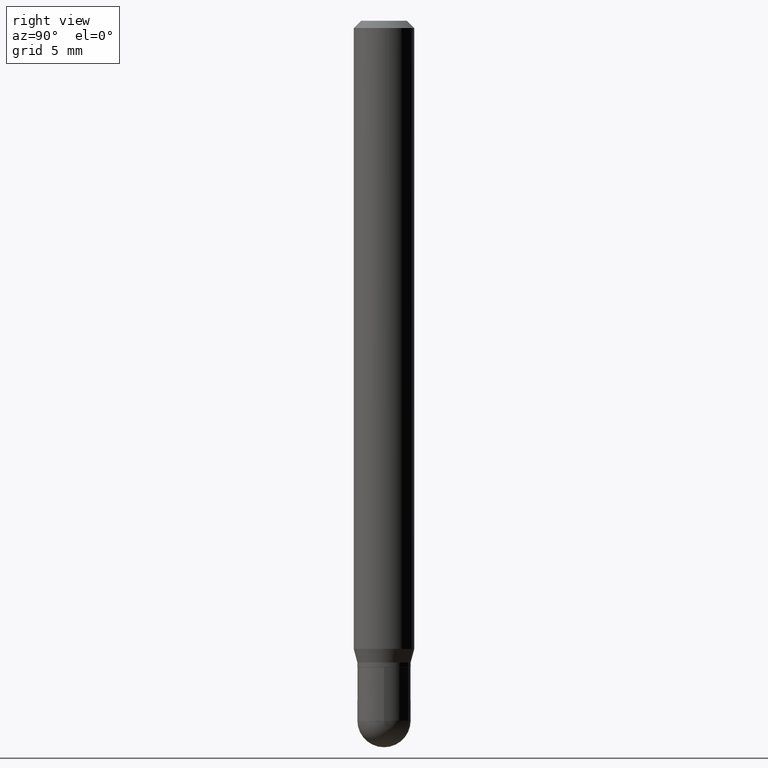
[diagram: clean part render]
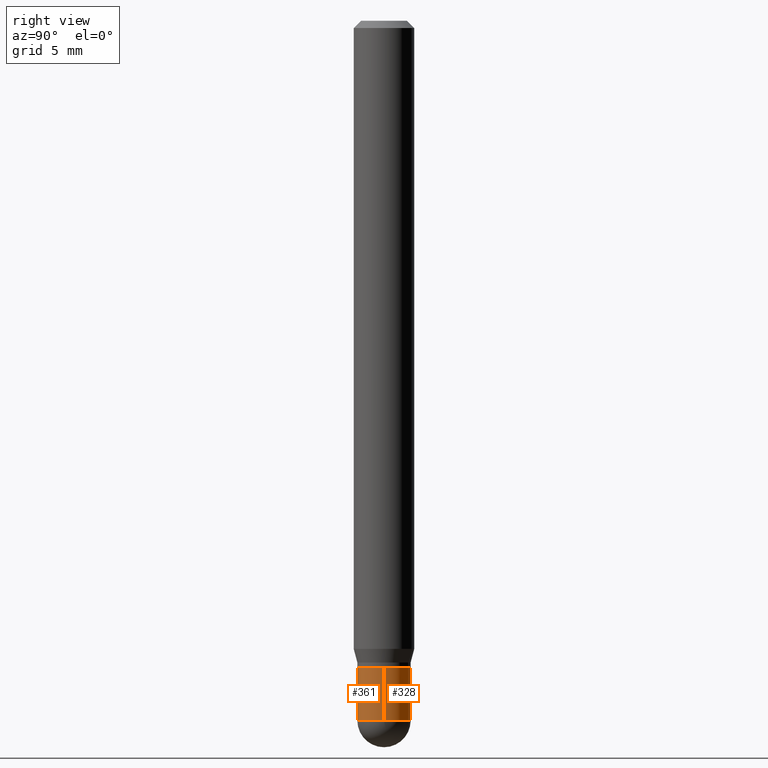
[diagram: same view with one multi-face feature highlighted, each face labeled with its STEP entity id]
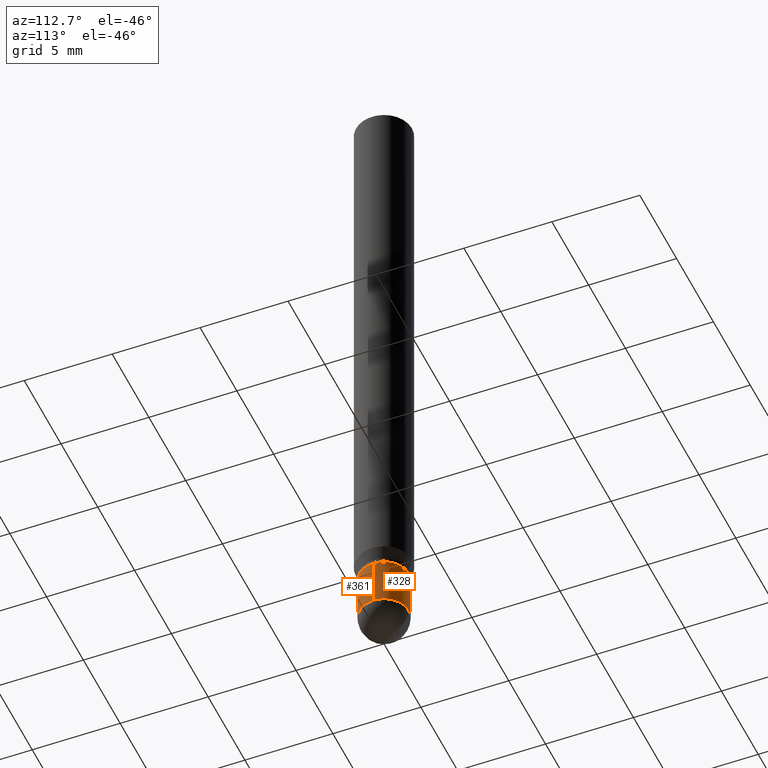
[diagram: same view with one multi-face feature highlighted, each face labeled with its STEP entity id]
A machine part, right view. The highlighted faces form ONE feature: a constant-radius fillet chain: 2 tangent blend faces with common blend radius 1.397 mm. The faces share edges in the B-rep.
A second angle (auxiliary view) of the same feature is appended — it is thin or edge-on in the first view.
Their STEP definitions:
[1] entity #361 (Cylinder):
#9 = CARTESIAN_POINT ( 'NONE',  ( -3.840629472727099789E-16, -0.05500000000000514894, -1.444999999999999840 ) ) ;
#16 = ORIENTED_EDGE ( 'NONE', *, *, #454, .F. ) ;
#18 = CARTESIAN_POINT ( 'NONE',  ( -0.05500000000000000028, 3.907985046680551042E-16, -2.705414299640198362E-30 ) ) ;
#24 = EDGE_CURVE ( 'NONE', #254, #249, #180, .T. ) ;
#34 = CARTESIAN_POINT ( 'NONE',  ( 3.264700856257157760E-29, -4.661127587355599122E-15, -1.335000000000000187 ) ) ;
#47 = CARTESIAN_POINT ( 'NONE',  ( 0.05500000000000000028, -5.045190534628344107E-15, -1.335000000000000187 ) ) ;
#64 = EDGE_CURVE ( 'NONE', #321, #373, #155, .T. ) ;
#78 = CARTESIAN_POINT ( 'NONE',  ( 3.533702424937522517E-29, -5.045190534628345684E-15, -1.445000000000000062 ) ) ;
#86 = DIRECTION ( 'NONE',  ( -2.445468806185136597E-29, 3.491481338843145583E-15, 1.000000000000000000 ) ) ;
#90 = AXIS2_PLACEMENT_3D ( 'NONE', #34, #437, #236 ) ;
#94 = ORIENTED_EDGE ( 'NONE', *, *, #24, .F. ) ;
#105 = EDGE_CURVE ( 'NONE', #373, #249, #264, .T. ) ;
#110 = CARTESIAN_POINT ( 'NONE',  ( -0.05500000000000000028, -4.462360556323917743E-15, -1.445000000000000062 ) ) ;
#128 = ORIENTED_EDGE ( 'NONE', *, *, #105, .T. ) ;
#129 = CARTESIAN_POINT ( 'NONE',  ( 0.000000000000000000, 0.000000000000000000, 0.000000000000000000 ) ) ;
#136 = ORIENTED_EDGE ( 'NONE', *, *, #64, .T. ) ;
#143 = VERTEX_POINT ( 'NONE', #110 ) ;
#155 = CIRCLE ( 'NONE', #508, 0.05500000000000000028 ) ;
#168 = FACE_OUTER_BOUND ( 'NONE', #336, .T. ) ;
#171 = CARTESIAN_POINT ( 'NONE',  ( 3.533702424937522517E-29, -5.045190534628345684E-15, -1.445000000000000062 ) ) ;
#172 = ORIENTED_EDGE ( 'NONE', *, *, #239, .T. ) ;
#177 = LINE ( 'NONE', #18, #407 ) ;
#180 = CIRCLE ( 'NONE', #90, 0.05500000000000000028 ) ;
#202 = DIRECTION ( 'NONE',  ( -2.445468806185136877E-29, 3.491481338843145188E-15, 1.000000000000000000 ) ) ;
#236 = DIRECTION ( 'NONE',  ( 1.000000000000000000, -6.982962677686262766E-15, 0.000000000000000000 ) ) ;
#239 = EDGE_CURVE ( 'NONE', #143, #321, #276, .T. ) ;
#241 = CARTESIAN_POINT ( 'NONE',  ( -0.05500000000000000028, -4.462360556323917743E-15, -1.335000000000000187 ) ) ;
#245 = DIRECTION ( 'NONE',  ( 1.000000000000000000, -6.982962677686262766E-15, 0.000000000000000000 ) ) ;
#249 = VERTEX_POINT ( 'NONE', #47 ) ;
#254 = VERTEX_POINT ( 'NONE', #241 ) ;
#264 = LINE ( 'NONE', #501, #422 ) ;
#276 = CIRCLE ( 'NONE', #311, 0.05500000000000000028 ) ;
#298 = DIRECTION ( 'NONE',  ( -2.445468806185136877E-29, 3.491481338843145188E-15, 1.000000000000000000 ) ) ;
#311 = AXIS2_PLACEMENT_3D ( 'NONE', #171, #86, #245 ) ;
#319 = DIRECTION ( 'NONE',  ( 1.000000000000000000, -6.982962677686266711E-15, 4.876176775795935793E-29 ) ) ;
#321 = VERTEX_POINT ( 'NONE', #9 ) ;
#336 = EDGE_LOOP ( 'NONE', ( #16, #172, #136, #128, #94 ) ) ;
#361 = ADVANCED_FACE ( 'NONE', ( #168 ), #447, .T. ) ;
#367 = CARTESIAN_POINT ( 'NONE',  ( 0.05500000000000000028, -5.237222008264716599E-15, -1.445000000000000062 ) ) ;
#373 = VERTEX_POINT ( 'NONE', #367 ) ;
#390 = AXIS2_PLACEMENT_3D ( 'NONE', #129, #479, #319 ) ;
#396 = DIRECTION ( 'NONE',  ( -2.445468806185136597E-29, 3.491481338843145583E-15, 1.000000000000000000 ) ) ;
#401 = DIRECTION ( 'NONE',  ( 1.000000000000000000, -6.982962677686262766E-15, 0.000000000000000000 ) ) ;
#407 = VECTOR ( 'NONE', #298, 39.37007874015748143 ) ;
#422 = VECTOR ( 'NONE', #202, 39.37007874015748143 ) ;
#437 = DIRECTION ( 'NONE',  ( -2.445468806185136597E-29, 3.491481338843145583E-15, 1.000000000000000000 ) ) ;
#447 = CYLINDRICAL_SURFACE ( 'NONE', #390, 0.05500000000000000028 ) ;
#454 = EDGE_CURVE ( 'NONE', #143, #254, #177, .T. ) ;
#479 = DIRECTION ( 'NONE',  ( -2.445468806185136597E-29, 3.491481338843145583E-15, 1.000000000000000000 ) ) ;
#501 = CARTESIAN_POINT ( 'NONE',  ( 0.05500000000000000028, -3.840629472727446888E-16, 2.681897226687764826E-30 ) ) ;
#508 = AXIS2_PLACEMENT_3D ( 'NONE', #78, #396, #401 ) ;
[2] entity #328 (Cylinder):
#6 = FACE_OUTER_BOUND ( 'NONE', #368, .T. ) ;
#18 = CARTESIAN_POINT ( 'NONE',  ( -0.05500000000000000028, 3.907985046680551042E-16, -2.705414299640198362E-30 ) ) ;
#26 = VERTEX_POINT ( 'NONE', #121 ) ;
#41 = CARTESIAN_POINT ( 'NONE',  ( 0.000000000000000000, 0.000000000000000000, 0.000000000000000000 ) ) ;
#45 = CIRCLE ( 'NONE', #228, 0.05500000000000000028 ) ;
#47 = CARTESIAN_POINT ( 'NONE',  ( 0.05500000000000000028, -5.045190534628344107E-15, -1.335000000000000187 ) ) ;
#48 = ORIENTED_EDGE ( 'NONE', *, *, #178, .T. ) ;
#55 = CIRCLE ( 'NONE', #352, 0.05500000000000000028 ) ;
#105 = EDGE_CURVE ( 'NONE', #373, #249, #264, .T. ) ;
#110 = CARTESIAN_POINT ( 'NONE',  ( -0.05500000000000000028, -4.462360556323917743E-15, -1.445000000000000062 ) ) ;
#121 = CARTESIAN_POINT ( 'NONE',  ( 3.907985046680910960E-16, 0.05499999999999503897, -1.445000000000000284 ) ) ;
#133 = CYLINDRICAL_SURFACE ( 'NONE', #433, 0.05500000000000000028 ) ;
#143 = VERTEX_POINT ( 'NONE', #110 ) ;
#160 = CARTESIAN_POINT ( 'NONE',  ( 3.533702424937522517E-29, -5.045190534628345684E-15, -1.445000000000000062 ) ) ;
#162 = DIRECTION ( 'NONE',  ( -2.445468806185136597E-29, 3.491481338843145583E-15, 1.000000000000000000 ) ) ;
#163 = ORIENTED_EDGE ( 'NONE', *, *, #105, .F. ) ;
#177 = LINE ( 'NONE', #18, #407 ) ;
#178 = EDGE_CURVE ( 'NONE', #26, #143, #55, .T. ) ;
#202 = DIRECTION ( 'NONE',  ( -2.445468806185136877E-29, 3.491481338843145188E-15, 1.000000000000000000 ) ) ;
#204 = DIRECTION ( 'NONE',  ( 1.000000000000000000, -6.982962677686266711E-15, 4.876176775795935793E-29 ) ) ;
#228 = AXIS2_PLACEMENT_3D ( 'NONE', #160, #286, #474 ) ;
#241 = CARTESIAN_POINT ( 'NONE',  ( -0.05500000000000000028, -4.462360556323917743E-15, -1.335000000000000187 ) ) ;
#249 = VERTEX_POINT ( 'NONE', #47 ) ;
#251 = ORIENTED_EDGE ( 'NONE', *, *, #454, .T. ) ;
#254 = VERTEX_POINT ( 'NONE', #241 ) ;
#264 = LINE ( 'NONE', #501, #422 ) ;
#272 = DIRECTION ( 'NONE',  ( -2.445468806185136597E-29, 3.491481338843145583E-15, 1.000000000000000000 ) ) ;
#281 = DIRECTION ( 'NONE',  ( 1.000000000000000000, -6.982962677686262766E-15, 0.000000000000000000 ) ) ;
#286 = DIRECTION ( 'NONE',  ( -2.445468806185136597E-29, 3.491481338843145583E-15, 1.000000000000000000 ) ) ;
#296 = ORIENTED_EDGE ( 'NONE', *, *, #369, .T. ) ;
#298 = DIRECTION ( 'NONE',  ( -2.445468806185136877E-29, 3.491481338843145188E-15, 1.000000000000000000 ) ) ;
#322 = EDGE_CURVE ( 'NONE', #249, #254, #399, .T. ) ;
#328 = ADVANCED_FACE ( 'NONE', ( #6 ), #133, .T. ) ;
#346 = DIRECTION ( 'NONE',  ( 1.000000000000000000, -6.982962677686262766E-15, 0.000000000000000000 ) ) ;
#347 = CARTESIAN_POINT ( 'NONE',  ( 3.533702424937522517E-29, -5.045190534628345684E-15, -1.445000000000000062 ) ) ;
#352 = AXIS2_PLACEMENT_3D ( 'NONE', #347, #272, #346 ) ;
#360 = AXIS2_PLACEMENT_3D ( 'NONE', #402, #162, #281 ) ;
#367 = CARTESIAN_POINT ( 'NONE',  ( 0.05500000000000000028, -5.237222008264716599E-15, -1.445000000000000062 ) ) ;
#368 = EDGE_LOOP ( 'NONE', ( #48, #251, #406, #163, #296 ) ) ;
#369 = EDGE_CURVE ( 'NONE', #373, #26, #45, .T. ) ;
#373 = VERTEX_POINT ( 'NONE', #367 ) ;
#399 = CIRCLE ( 'NONE', #360, 0.05500000000000000028 ) ;
#402 = CARTESIAN_POINT ( 'NONE',  ( 3.264700856257157760E-29, -4.661127587355599122E-15, -1.335000000000000187 ) ) ;
#406 = ORIENTED_EDGE ( 'NONE', *, *, #322, .F. ) ;
#407 = VECTOR ( 'NONE', #298, 39.37007874015748143 ) ;
#422 = VECTOR ( 'NONE', #202, 39.37007874015748143 ) ;
#433 = AXIS2_PLACEMENT_3D ( 'NONE', #41, #445, #204 ) ;
#445 = DIRECTION ( 'NONE',  ( -2.445468806185136597E-29, 3.491481338843145583E-15, 1.000000000000000000 ) ) ;
#454 = EDGE_CURVE ( 'NONE', #143, #254, #177, .T. ) ;
#474 = DIRECTION ( 'NONE',  ( 1.000000000000000000, -6.982962677686262766E-15, 0.000000000000000000 ) ) ;
#501 = CARTESIAN_POINT ( 'NONE',  ( 0.05500000000000000028, -3.840629472727446888E-16, 2.681897226687764826E-30 ) ) ;